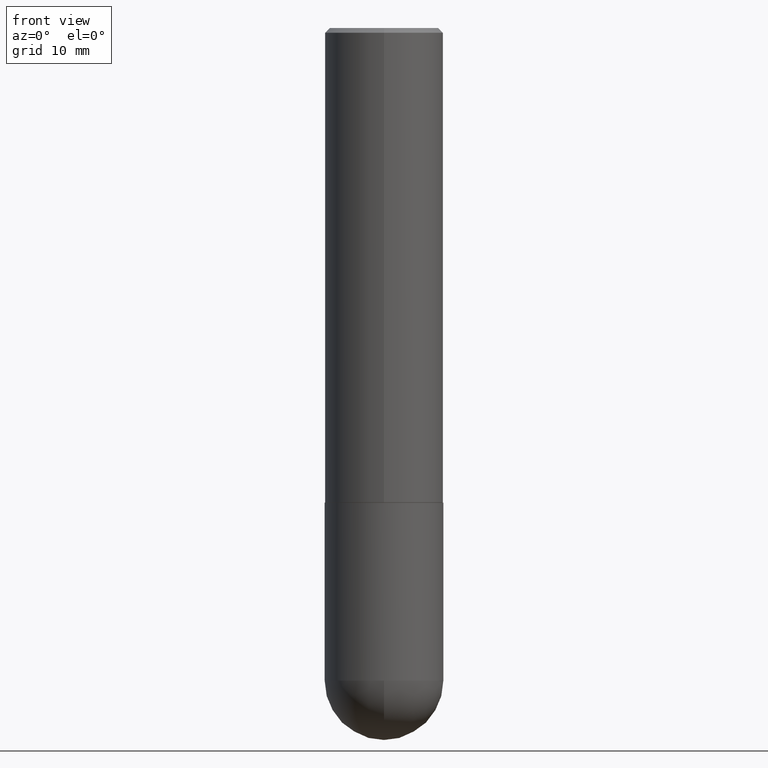
[diagram: clean part render]
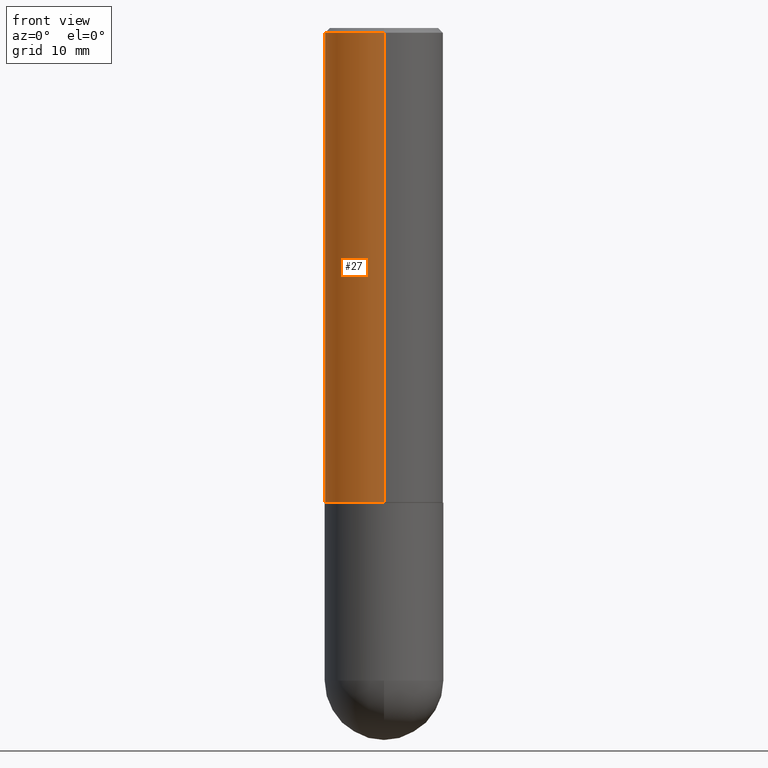
[diagram: same view with one face highlighted and labeled with its STEP entity id]
A machine part, front view. The second image highlights one B-rep face of the part: STEP entity #27.
In plain terms, the highlighted cylindrical surface (partial cylindrical patch) has radius 6.35 mm, axis along (-0, 0, 1).
Its self-contained STEP definition (entity closure, byte-faithful):
#1 = CARTESIAN_POINT ( 'NONE',  ( 4.888550873469898599E-29, -6.979387091779629703E-15, -1.999000000000000110 ) ) ;
#3 = DIRECTION ( 'NONE',  ( -2.445498185827862871E-29, 3.491439265522576099E-15, 1.000000000000000000 ) ) ;
#5 = VECTOR ( 'NONE', #3, 39.37007874015748143 ) ;
#7 = EDGE_CURVE ( 'NONE', #302, #392, #145, .T. ) ;
#27 = ADVANCED_FACE ( 'NONE', ( #149 ), #280, .T. ) ;
#70 = ORIENTED_EDGE ( 'NONE', *, *, #129, .T. ) ;
#110 = ORIENTED_EDGE ( 'NONE', *, *, #228, .F. ) ;
#116 = DIRECTION ( 'NONE',  ( -6.982962677686266711E-15, -1.000000000000000000, 3.491439265522576099E-15 ) ) ;
#124 = EDGE_CURVE ( 'NONE', #287, #360, #224, .T. ) ;
#129 = EDGE_CURVE ( 'NONE', #360, #392, #353, .T. ) ;
#131 = LINE ( 'NONE', #262, #296 ) ;
#145 = CIRCLE ( 'NONE', #377, 0.2500000000000000000 ) ;
#149 = FACE_OUTER_BOUND ( 'NONE', #394, .T. ) ;
#165 = CARTESIAN_POINT ( 'NONE',  ( -1.715124499442882299E-15, -0.2500000000000000555, -0.01999999999999918510 ) ) ;
#181 = AXIS2_PLACEMENT_3D ( 'NONE', #403, #219, #116 ) ;
#194 = CARTESIAN_POINT ( 'NONE',  ( 1.776356839400276103E-15, 0.2499999999999933109, -1.999000000000000998 ) ) ;
#209 = ORIENTED_EDGE ( 'NONE', *, *, #7, .F. ) ;
#219 = DIRECTION ( 'NONE',  ( -2.445498185827863151E-29, 3.491439265522576099E-15, 1.000000000000000000 ) ) ;
#224 = CIRCLE ( 'NONE', #260, 0.2500000000000002776 ) ;
#228 = EDGE_CURVE ( 'NONE', #287, #302, #131, .T. ) ;
#260 = AXIS2_PLACEMENT_3D ( 'NONE', #1, #324, #295 ) ;
#262 = CARTESIAN_POINT ( 'NONE',  ( 1.776356839400251254E-15, 0.2500000000000001110, -8.728598163806444193E-16 ) ) ;
#280 = CYLINDRICAL_SURFACE ( 'NONE', #181, 0.2500000000000001110 ) ;
#285 = DIRECTION ( 'NONE',  ( -6.982962677686265922E-15, -1.000000000000000000, 3.483106191921935554E-15 ) ) ;
#287 = VERTEX_POINT ( 'NONE', #194 ) ;
#293 = CARTESIAN_POINT ( 'NONE',  ( -1.745740669421567467E-15, -0.2500000000000001110, 8.728598163806444193E-16 ) ) ;
#295 = DIRECTION ( 'NONE',  ( -6.982962677686265922E-15, -1.000000000000000000, 3.278217592397112312E-15 ) ) ;
#296 = VECTOR ( 'NONE', #354, 39.37007874015748143 ) ;
#302 = VERTEX_POINT ( 'NONE', #385 ) ;
#324 = DIRECTION ( 'NONE',  ( -2.445498185827863151E-29, 3.491439265522576099E-15, 1.000000000000000000 ) ) ;
#326 = CARTESIAN_POINT ( 'NONE',  ( -1.745740669421519543E-15, -0.2500000000000072164, -1.998999999999999444 ) ) ;
#340 = CARTESIAN_POINT ( 'NONE',  ( 4.890996371655739930E-31, -6.982878531045171230E-17, -0.02000000000000005593 ) ) ;
#345 = DIRECTION ( 'NONE',  ( -2.445498185827863151E-29, 3.491439265522576099E-15, 1.000000000000000000 ) ) ;
#353 = LINE ( 'NONE', #293, #5 ) ;
#354 = DIRECTION ( 'NONE',  ( -2.445498185827862871E-29, 3.491439265522576099E-15, 1.000000000000000000 ) ) ;
#358 = ORIENTED_EDGE ( 'NONE', *, *, #124, .T. ) ;
#360 = VERTEX_POINT ( 'NONE', #326 ) ;
#377 = AXIS2_PLACEMENT_3D ( 'NONE', #340, #345, #285 ) ;
#385 = CARTESIAN_POINT ( 'NONE',  ( 1.745740669421566875E-15, 0.2499999999999999167, -0.02000000000000092676 ) ) ;
#392 = VERTEX_POINT ( 'NONE', #165 ) ;
#394 = EDGE_LOOP ( 'NONE', ( #110, #358, #70, #209 ) ) ;
#403 = CARTESIAN_POINT ( 'NONE',  ( 0.000000000000000000, 0.000000000000000000, 0.000000000000000000 ) ) ;